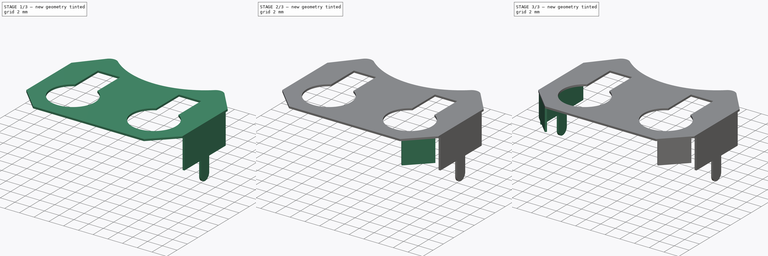
[diagram: build sequence overview — one tinted view per stage of 3, left to right]
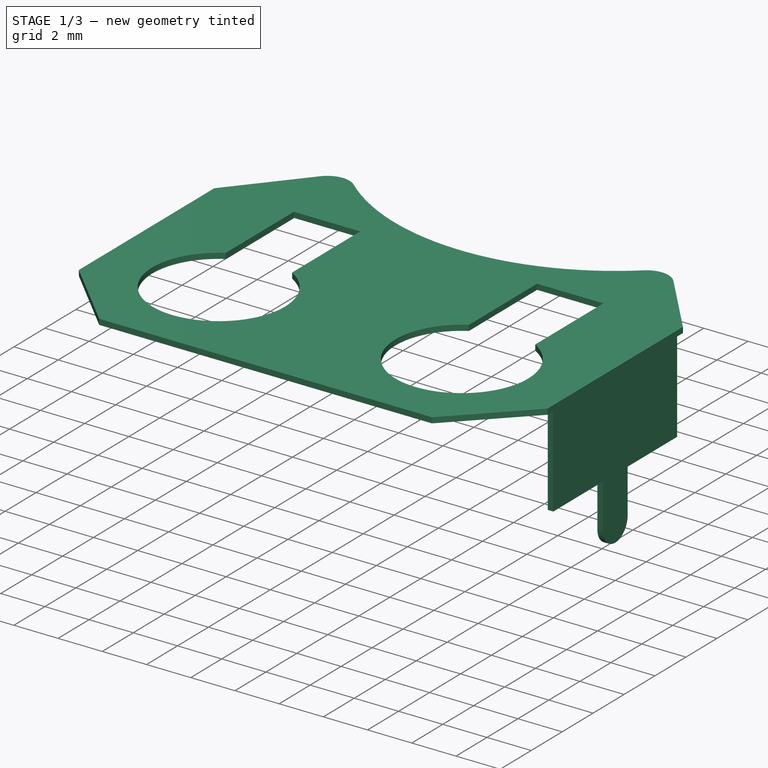
[diagram: stage 1 of 3 — iso view after this stage's code; geometry added in this stage tinted green]
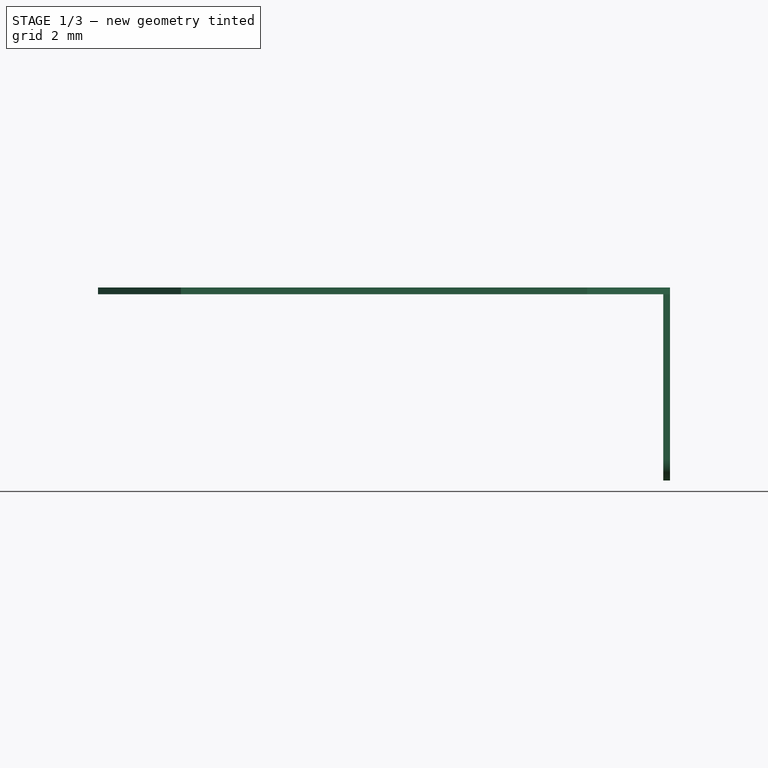
[diagram: stage 1 of 3 — front view after this stage's code; geometry added in this stage tinted green]
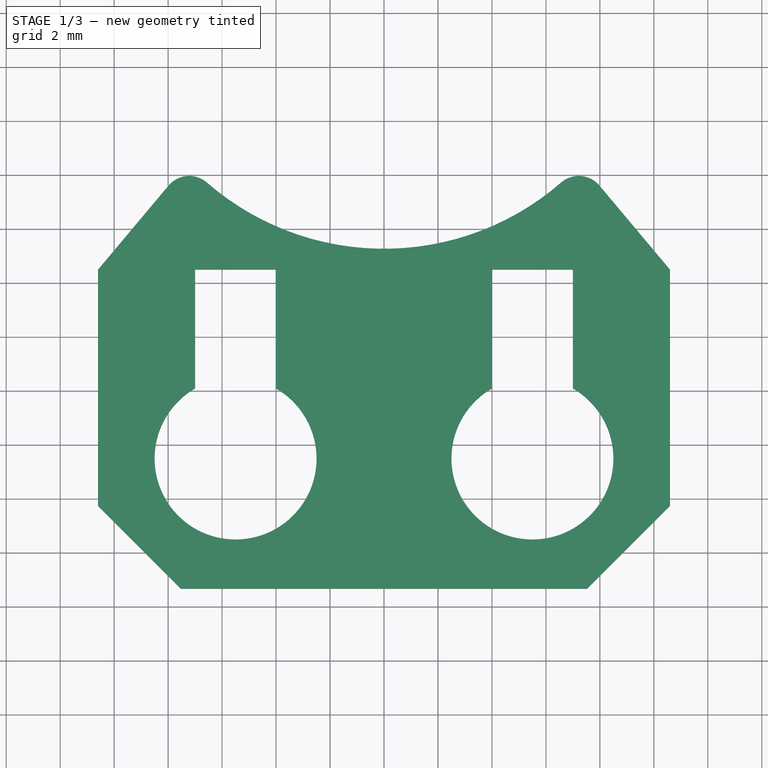
[diagram: stage 1 of 3 — top view after this stage's code; geometry added in this stage tinted green]
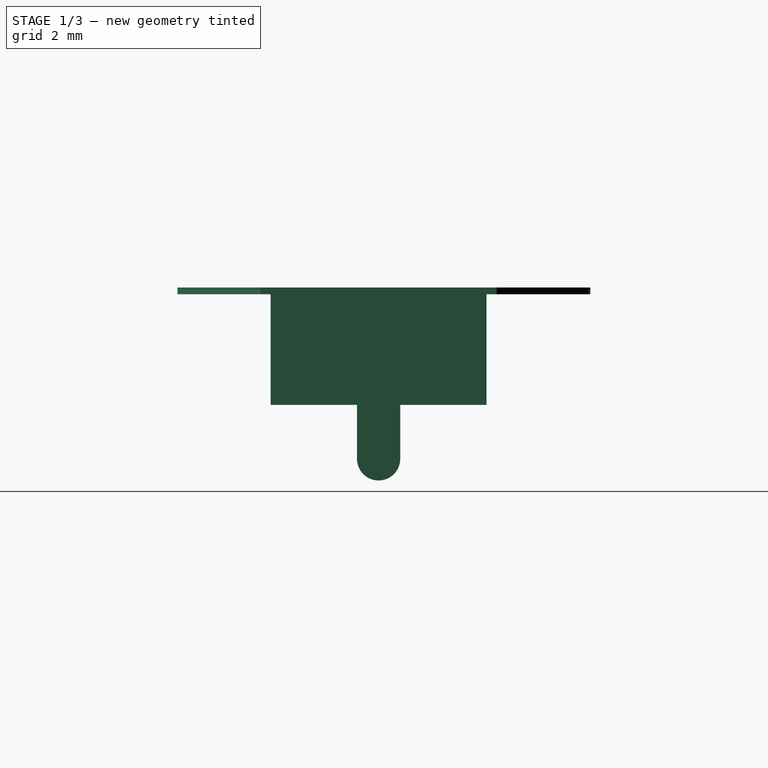
[diagram: stage 1 of 3 — right view after this stage's code; geometry added in this stage tinted green]
FCSTD DOCUMENT  (FreeCAD 0.16R6705 (Git))
Label: BK-913
License: All rights reserved
LicenseURL: http://en.wikipedia.org/wiki/All_rights_reserved
objects: Sketcher::SketchObject×5, PartDesign::Pad×5
note: 15 computed .brp shape members not serialized (recipe doc carries the construction recipe); baked Part::Feature solids carry a one-line shape summary decoded from their .brp

FEATURE [Sketcher::SketchObject] Sketch
  sketch-geometry (19):
    g0: LineSegment StartX=10.6 StartY=-4.375 StartZ=0 EndX=10.6 EndY=4.375 EndZ=0
    g1: LineSegment StartX=7.525 StartY=-7.45 StartZ=0 EndX=-7.525 EndY=-7.45 EndZ=0
    g2: LineSegment StartX=10.6 StartY=-4.375 StartZ=0 EndX=7.525 EndY=-7.45 EndZ=0
    g3: LineSegment StartX=-7.525 StartY=-7.45 StartZ=0 EndX=-10.6 EndY=-4.375 EndZ=0
    g4: LineSegment StartX=-10.6 StartY=-4.375 StartZ=0 EndX=-10.6 EndY=4.375 EndZ=0
    g5: LineSegment StartX=-10.6 StartY=4.375 StartZ=0 EndX=-7.98386 EndY=7.4928 EndZ=0
    g6: LineSegment StartX=10.6 StartY=4.375 StartZ=0 EndX=7.98387 EndY=7.49279 EndZ=0
    g7: ArcOfCircle CenterX=0 CenterY=15.1508 CenterZ=0 NormalX=0 NormalY=0 NormalZ=1 Radius=10 StartAngle=3.99666 EndAngle=5.42812
    g8: ArcOfCircle CenterX=-7.21782 CenterY=6.85 CenterZ=0 NormalX=0 NormalY=0 NormalZ=1 Radius=1 StartAngle=0.85507 EndAngle=2.44345
    g9: ArcOfCircle CenterX=7.21782 CenterY=6.85 CenterZ=0 NormalX=0 NormalY=0 NormalZ=1 Radius=1 StartAngle=0.698132 EndAngle=2.28652
    g10: LineSegment StartX=4 StartY=4.375 StartZ=0 EndX=4 EndY=-0.0269238 EndZ=0
    g11: LineSegment StartX=7 StartY=4.375 StartZ=0 EndX=7 EndY=-0.0269238 EndZ=0
    g12: ArcOfCircle CenterX=5.5 CenterY=-2.625 CenterZ=0 NormalX=0 NormalY=0 NormalZ=1 Radius=3 StartAngle=2.0944 EndAngle=7.33038
    g13: LineSegment [constr] StartX=10.6 StartY=4.375 StartZ=0 EndX=-10.6 EndY=4.375 EndZ=0
    g14: LineSegment StartX=-7 StartY=4.375 StartZ=0 EndX=-7 EndY=-0.0269238 EndZ=0
    g15: LineSegment StartX=-4 StartY=4.375 StartZ=0 EndX=-4 EndY=-0.0269238 EndZ=0
    g16: ArcOfCircle CenterX=-5.5 CenterY=-2.625 CenterZ=0 NormalX=0 NormalY=0 NormalZ=1 Radius=3 StartAngle=2.0944 EndAngle=7.33038
    g17: LineSegment StartX=7 StartY=4.375 StartZ=0 EndX=4 EndY=4.375 EndZ=0
    g18: LineSegment StartX=-4 StartY=4.375 StartZ=0 EndX=-7 EndY=4.375 EndZ=0
  constraints (64):
    c: DistanceY(g0,g0) = 8.75
    c: Horizontal(g1)
    c: DistanceX(g1,g1) = 15.05
    c: Coincident(g2,g1)
    c: Coincident(g0,g2)
    c: Vertical(g4)
    c: Coincident(g1,g3)
    c: Coincident(g3,g4)
    c: Coincident(g4,g5)
    c: Coincident(g6,g0)
    c: Symmetric(g1,g1,g-2)
    c: Symmetric(g0,g0,g-1)
    c: Angle(g5) = 0.872665
    c: Angle(g6) = 2.26893
    c: Angle(g2) = -2.35619
    c: Angle(g3) = 2.35619
    c: PointOnObject(g7,g-2)
    c: Radius(g7) = 10
    c: Radius(g8) = 1
    c: Tangent(g7,g8)
    c: Tangent(g5,g8)
    c: Coincident(g5,g8)
    c: PointOnObject(g9,g7)
    c: Tangent(g6,g9)
    c: Tangent(g7,g9)
    c: Radius(g9) = 1
    c: Coincident(g6,g9)
    c: Coincident(g9,g7)
    c: Coincident(g8,g7)
    c: Vertical(g10)
    c: Vertical(g11)
    c: Coincident(g12,g10)
    c: Coincident(g12,g11)
    c: Equal(g10,g11)
    c: Radius(g12) = 3
    c: DistanceX(g10,g11) = 3
    c: DistanceY(g12,g10) = 7
    c: Horizontal(g13)
    c: Symmetric(g4,g0,g-2)
    c: DistanceX(g3,g0) = 21.2
    c: DistanceY(g1,g8) = 14.3
    c: PointOnObject(g11,g13)
    c: PointOnObject(g10,g13)
    c: Vertical(g14)
    c: Vertical(g15)
    c: Coincident(g16,g14)
    c: Coincident(g16,g15)
    c: Equal(g14,g15)
    c: Equal(g12,g16) = 3
    c: DistanceX(g14,g15) = 3
    c: DistanceY(g16,g14) = 7
    c: PointOnObject(g15,g13)
    c: PointOnObject(g14,g13)
    c: Symmetric(g10,g15,g-2)
    c: DistanceX(g15,g10) = 8
    c: PointOnObject(g13,g0)
    c: PointOnObject(g13,g4)
    c: Horizontal(g17)
    c: Horizontal(g18)
    c: Coincident(g17,g11)
    c: Coincident(g17,g10)
    c: Coincident(g15,g18)
    c: Coincident(g18,g14)
    c: Coincident(g13,g4)
FEATURE [PartDesign::Pad] Pad
  Length = 0.25
  Length2 = 100
  Sketch = -> Sketch
  Type = 0
FEATURE [PartDesign::Pad] Pad006
  Length = 0.25
  Length2 = 100
  Placement = pos=(10.6,0,0) rot=(0.57735,0.57735,0.57735;2.0944rad)
  Reversed = true
  Sketch = -> Sketch004
  Type = 0
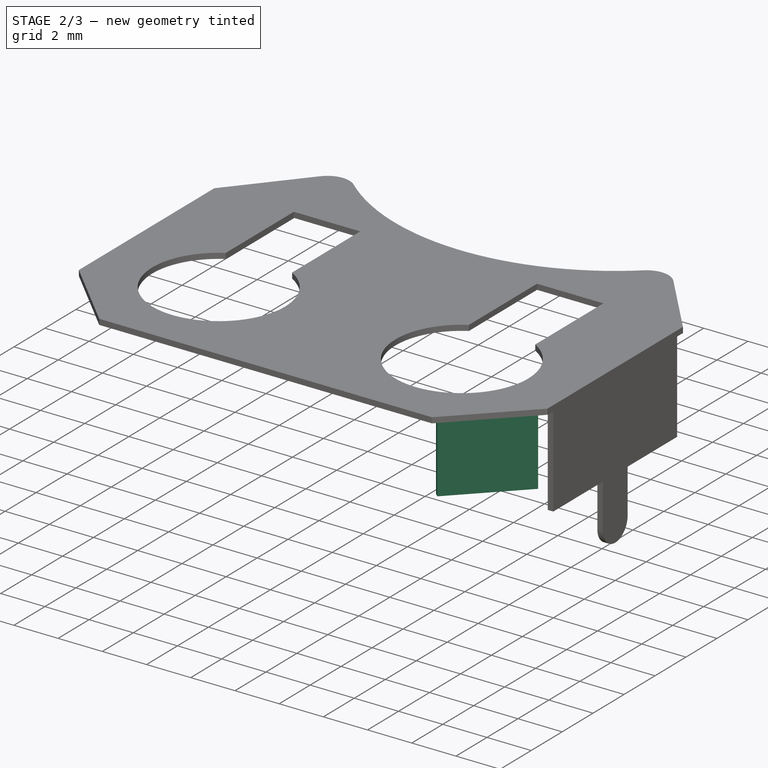
[diagram: stage 2 of 3 — iso view after this stage's code; geometry added in this stage tinted green]
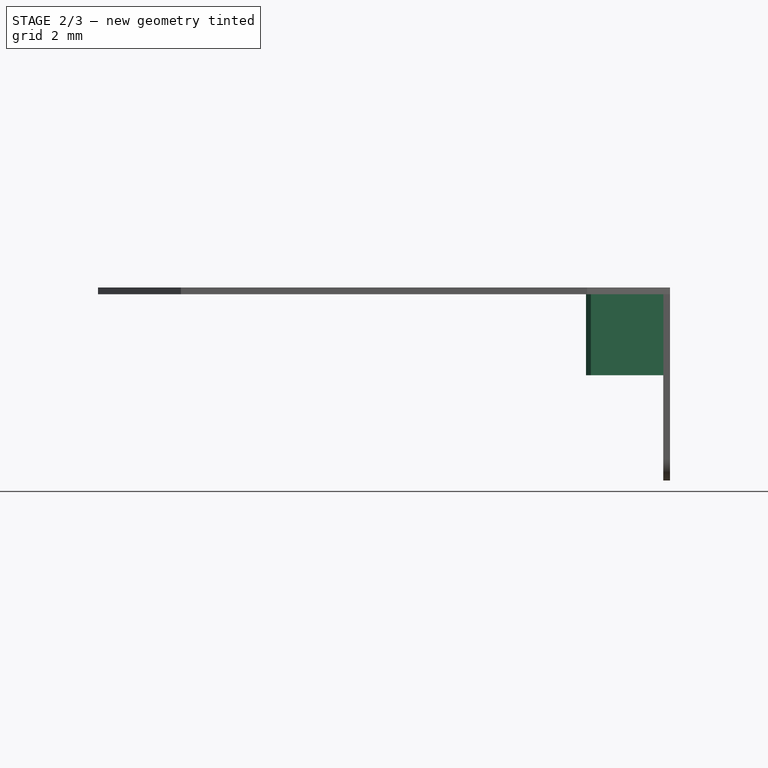
[diagram: stage 2 of 3 — front view after this stage's code; geometry added in this stage tinted green]
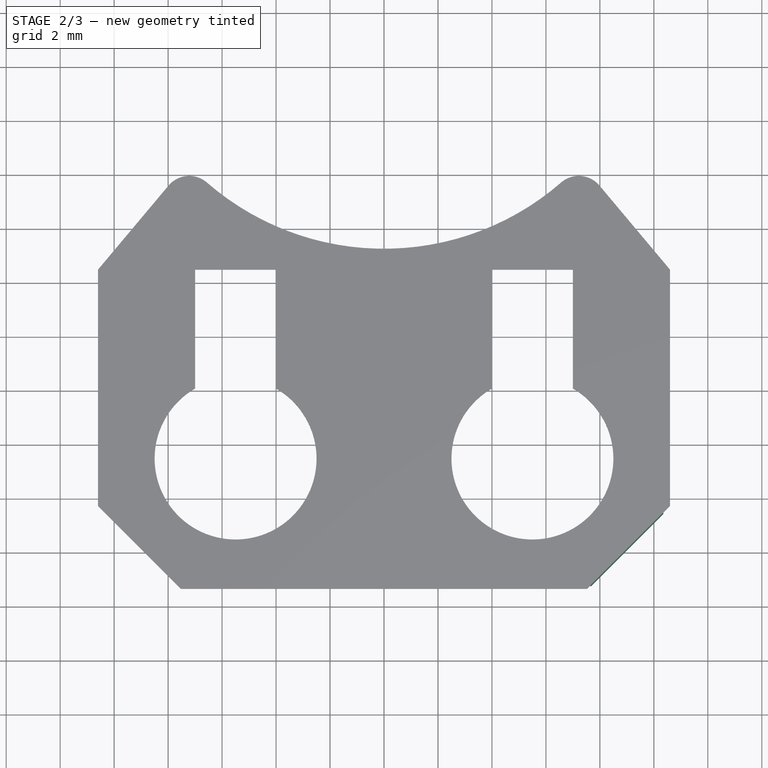
[diagram: stage 2 of 3 — top view after this stage's code; geometry added in this stage tinted green]
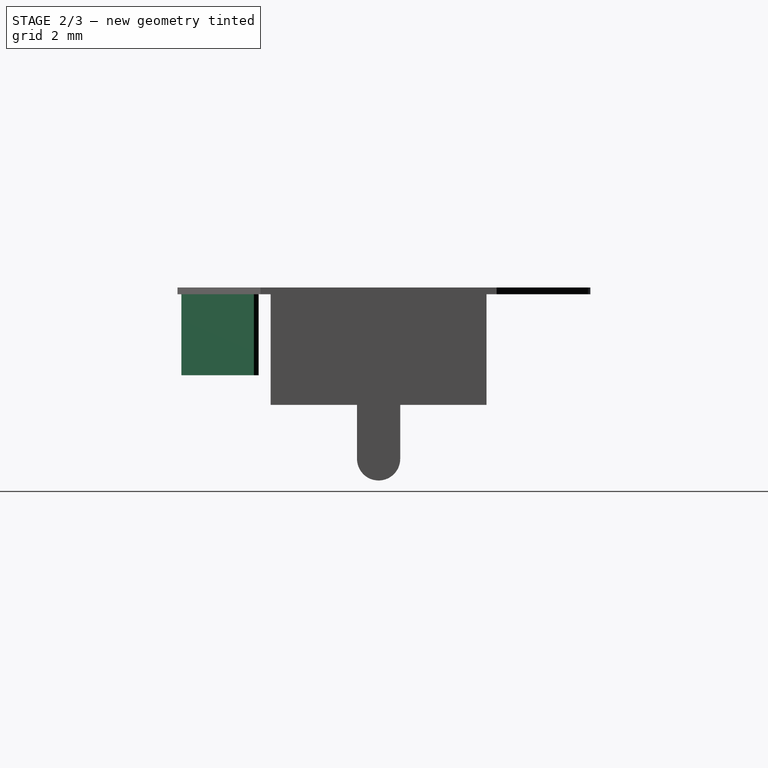
[diagram: stage 2 of 3 — right view after this stage's code; geometry added in this stage tinted green]
FEATURE [Sketcher::SketchObject] Sketch001
  Placement = pos=(7.4875,-7.4875,0) rot=(0.862856,0.357407,0.357407;1.71777rad)
  Support = -> Pad [Face1]
  expr: Constraints[11] = 0.25
  sketch-geometry (4):
    g0: LineSegment StartX=0.25 StartY=0 StartZ=0 EndX=4.05 EndY=0 EndZ=0
    g1: LineSegment StartX=4.05 StartY=0 StartZ=0 EndX=4.05 EndY=-3 EndZ=0
    g2: LineSegment StartX=4.05 StartY=-3 StartZ=0 EndX=0.25 EndY=-3 EndZ=0
    g3: LineSegment StartX=0.25 StartY=-3 StartZ=0 EndX=0.25 EndY=0 EndZ=0
  constraints (12):
    c: Coincident(g0,g1)
    c: Coincident(g1,g2)
    c: Coincident(g2,g3)
    c: Coincident(g3,g0)
    c: Horizontal(g0)
    c: Horizontal(g2)
    c: Vertical(g1)
    c: Vertical(g3)
    c: DistanceY(g1,g1) = 3
    c: DistanceX(g2,g2) = 3.8
    c: PointOnObject(g0,g-1)
    c: DistanceX(g-1,g0) = 0.25
FEATURE [PartDesign::Pad] Pad001
  Length = 0.25
  Length2 = 100
  Reversed = true
  Sketch = -> Sketch001
  Type = 0
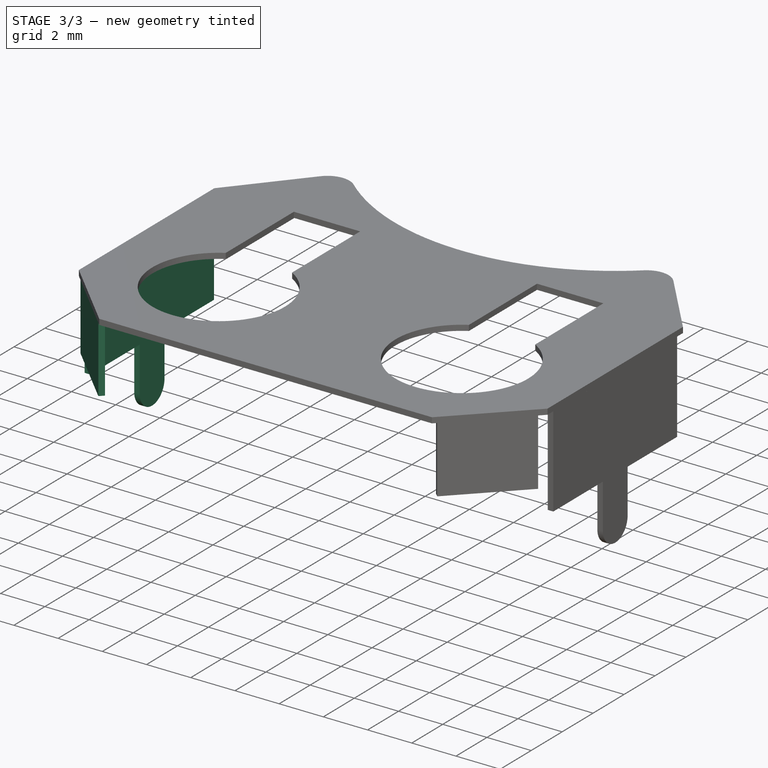
[diagram: stage 3 of 3 — iso view after this stage's code; geometry added in this stage tinted green]
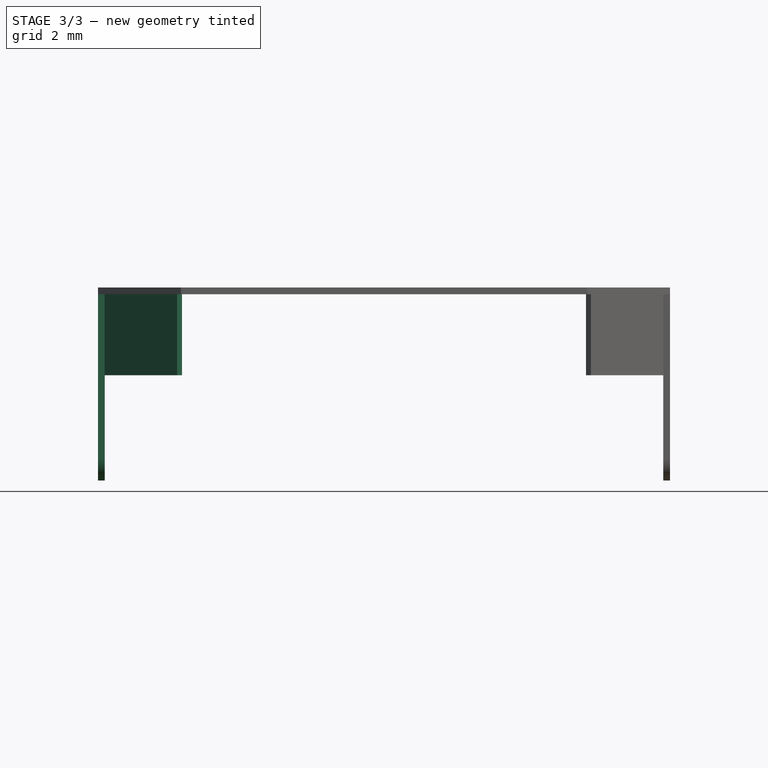
[diagram: stage 3 of 3 — front view after this stage's code; geometry added in this stage tinted green]
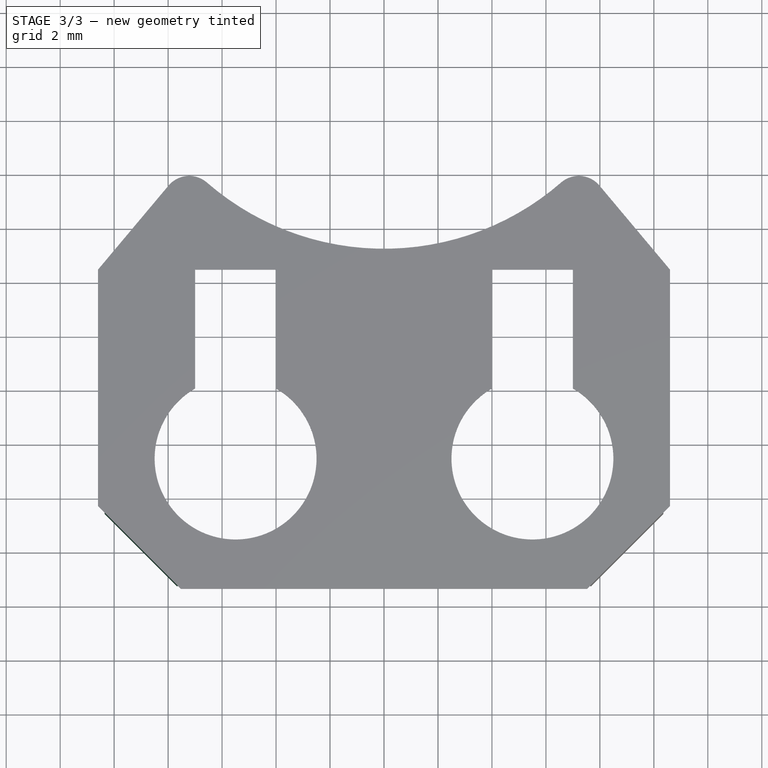
[diagram: stage 3 of 3 — top view after this stage's code; geometry added in this stage tinted green]
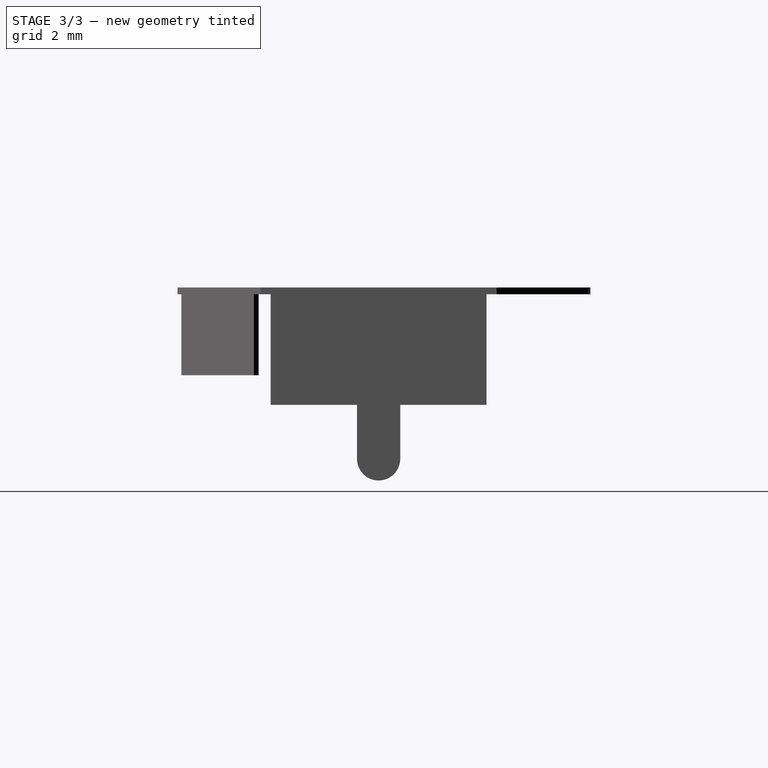
[diagram: stage 3 of 3 — right view after this stage's code; geometry added in this stage tinted green]
FEATURE [Sketcher::SketchObject] Sketch002
  Placement = pos=(-7.4875,-7.4875,0) rot=(0.862856,-0.357407,-0.357407;1.71777rad)
  Support = -> Pad001 [Face12]
  expr: Constraints[11] = 0.25
  sketch-geometry (4):
    g0: LineSegment StartX=-0.25 StartY=0 StartZ=0 EndX=-4.05 EndY=0 EndZ=0
    g1: LineSegment StartX=-4.05 StartY=0 StartZ=0 EndX=-4.05 EndY=-3 EndZ=0
    g2: LineSegment StartX=-4.05 StartY=-3 StartZ=0 EndX=-0.25 EndY=-3 EndZ=0
    g3: LineSegment StartX=-0.25 StartY=-3 StartZ=0 EndX=-0.25 EndY=0 EndZ=0
  constraints (12):
    c: Coincident(g0,g1)
    c: Coincident(g1,g2)
    c: Coincident(g2,g3)
    c: Coincident(g3,g0)
    c: Horizontal(g0)
    c: Horizontal(g2)
    c: Vertical(g1)
    c: Vertical(g3)
    c: DistanceY(g1,g1) = 3
    c: DistanceX(g2,g2) = 3.8
    c: PointOnObject(g0,g-1)
    c: DistanceX(g0,g-1) = 0.25
FEATURE [PartDesign::Pad] Pad002
  Length = 0.25
  Length2 = 100
  Reversed = true
  Sketch = -> Sketch002
  Type = 0
FEATURE [Sketcher::SketchObject] Sketch003
  Placement = pos=(-10.6,0,0) rot=(0.57735,-0.57735,-0.57735;2.0944rad)
  Support = -> Pad002 [Face16]
  sketch-geometry (8):
    g0: LineSegment StartX=-4 StartY=0 StartZ=0 EndX=4 EndY=0 EndZ=0
    g1: LineSegment StartX=4 StartY=0 StartZ=0 EndX=4 EndY=-4.1 EndZ=0
    g2: LineSegment StartX=4 StartY=-4.1 StartZ=0 EndX=0.8 EndY=-4.1 EndZ=0
    g3: LineSegment StartX=-4 StartY=-4.1 StartZ=0 EndX=-4 EndY=0 EndZ=0
    g4: ArcOfCircle CenterX=0 CenterY=-6.1 CenterZ=0 NormalX=0 NormalY=0 NormalZ=1 Radius=0.8 StartAngle=3.14159 EndAngle=6.28319
    g5: LineSegment StartX=0.8 StartY=-6.1 StartZ=0 EndX=0.8 EndY=-4.1 EndZ=0
    g6: LineSegment StartX=-0.8 StartY=-6.1 StartZ=0 EndX=-0.8 EndY=-4.1 EndZ=0
    g7: LineSegment StartX=-0.8 StartY=-4.1 StartZ=0 EndX=-4 EndY=-4.1 EndZ=0
  constraints (24):
    c: Coincident(g0,g1)
    c: Coincident(g1,g2)
    c: Coincident(g7,g3)
    c: Coincident(g3,g0)
    c: Horizontal(g0)
    c: Horizontal(g2)
    c: Vertical(g1)
    c: Vertical(g3)
    c: DistanceX(g7,g2) = 8
    c: DistanceY(g3,g3) = 4.1
    c: PointOnObject(g0,g-1)
    c: Symmetric(g1,g7,g-2)
    c: PointOnObject(g4,g-2)
    c: Vertical(g6)
    c: Vertical(g5)
    c: Coincident(g4,g5)
    c: Tangent(g4,g5)
    c: Tangent(g4,g6)
    c: Coincident(g6,g4)
    c: DistanceX(g4,g4) = 1.6
    c: Coincident(g2,g5)
    c: Coincident(g7,g6)
    c: Tangent(g2,g7)
    c: DistanceY(g6,g6) = 2
FEATURE [Sketcher::SketchObject] Sketch004
  Placement = pos=(10.6,0,0) rot=(0.57735,0.57735,0.57735;2.0944rad)
  sketch-geometry (8):
    g0: LineSegment StartX=4 StartY=0 StartZ=0 EndX=-4 EndY=0 EndZ=0
    g1: LineSegment StartX=-4 StartY=0 StartZ=0 EndX=-4 EndY=-4.1 EndZ=0
    g2: LineSegment StartX=-4 StartY=-4.1 StartZ=0 EndX=-0.8 EndY=-4.1 EndZ=0
    g3: LineSegment StartX=4 StartY=-4.1 StartZ=0 EndX=4 EndY=0 EndZ=0
    g4: ArcOfCircle CenterX=0 CenterY=-6.1 CenterZ=0 NormalX=0 NormalY=0 NormalZ=1 Radius=0.8 StartAngle=3.14159 EndAngle=6.28319
    g5: LineSegment StartX=0.8 StartY=-4.1 StartZ=0 EndX=0.8 EndY=-6.1 EndZ=0
    g6: LineSegment StartX=-0.8 StartY=-6.1 StartZ=0 EndX=-0.8 EndY=-4.1 EndZ=0
    g7: LineSegment StartX=0.8 StartY=-4.1 StartZ=0 EndX=4 EndY=-4.1 EndZ=0
  constraints (23):
    c: Coincident(g0,g1)
    c: Coincident(g1,g2)
    c: Coincident(g7,g3)
    c: Coincident(g3,g0)
    c: Horizontal(g0)
    c: Horizontal(g2)
    c: Vertical(g1)
    c: Vertical(g3)
    c: DistanceX(g2,g7) = 8
    c: DistanceY(g3,g3) = 4.1
    c: PointOnObject(g0,g-1)
    c: Symmetric(g0,g0,g-2)
    c: PointOnObject(g4,g-2)
    c: Coincident(g5,g4)
    c: Coincident(g6,g4)
    c: Vertical(g6)
    c: Vertical(g5)
    c: DistanceX(g4,g4) = 1.6
    c: Tangent(g4,g6)
    c: Tangent(g4,g5)
    c: Coincident(g2,g6)
    c: Coincident(g7,g5)
    c: Tangent(g2,g7)
FEATURE [PartDesign::Pad] Pad005
  Length = 0.25
  Length2 = 100
  Reversed = true
  Sketch = -> Sketch003
  Type = 0
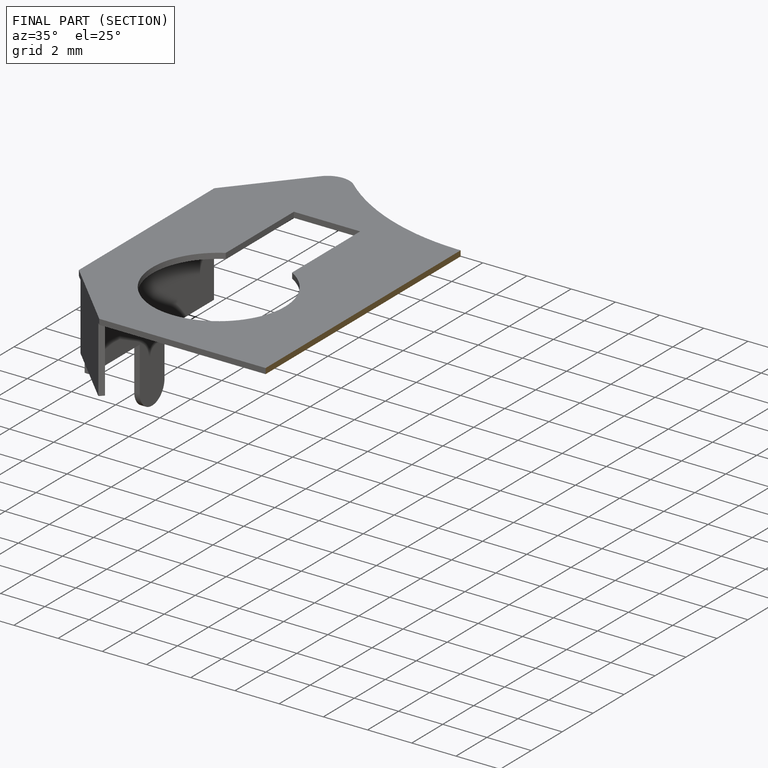
[diagram: finished part — half-section view (interior)]
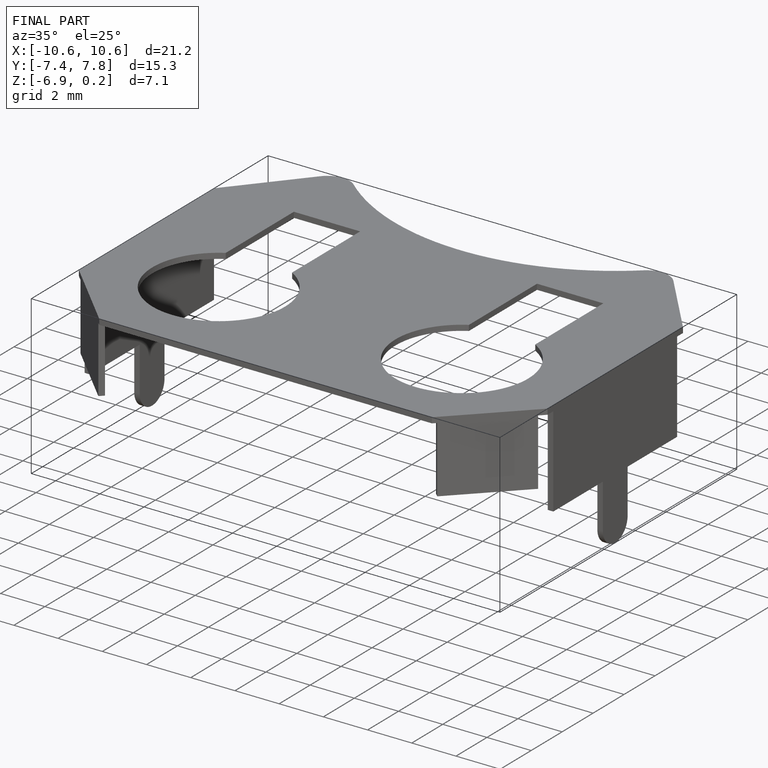
[diagram: finished part — iso view with bounding-box wireframe]
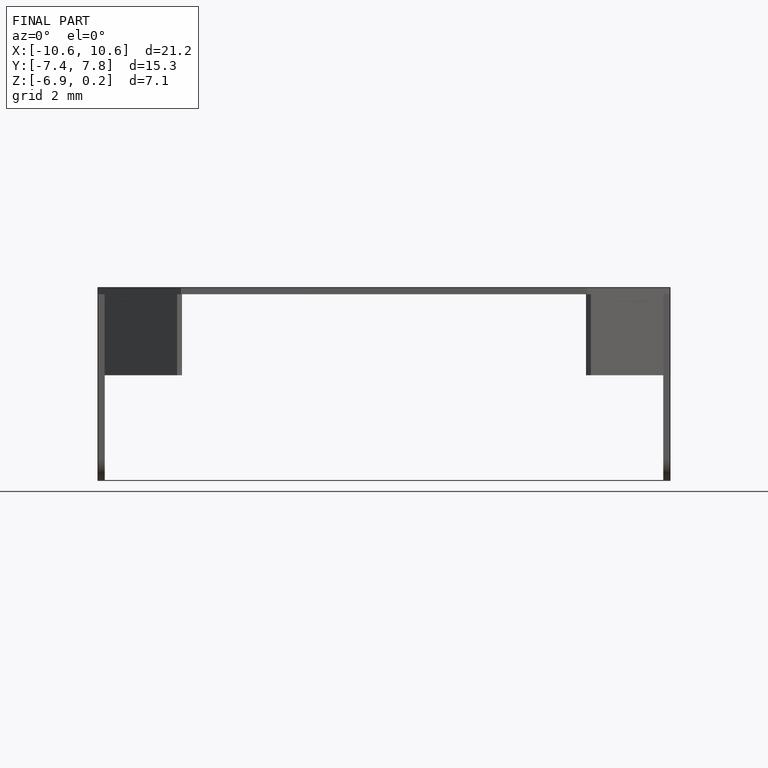
[diagram: finished part — front view with bounding-box wireframe]
